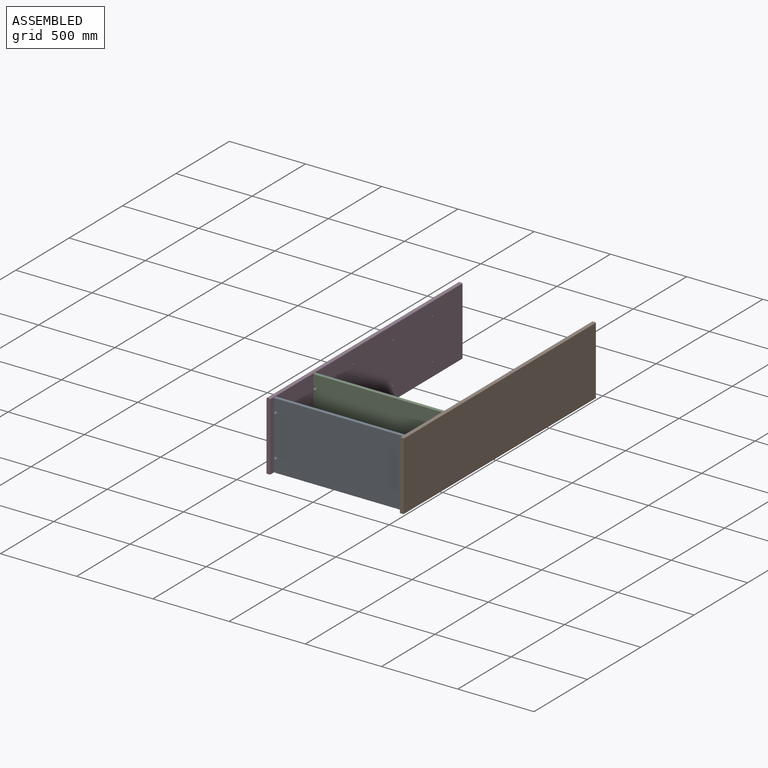
[diagram: assembled view]
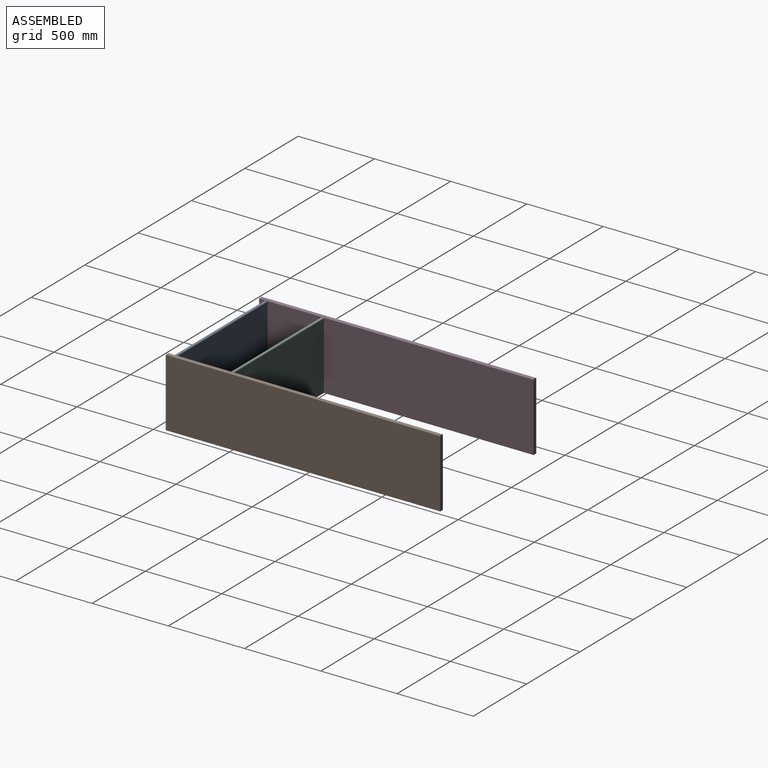
[diagram: assembled view, second angle]
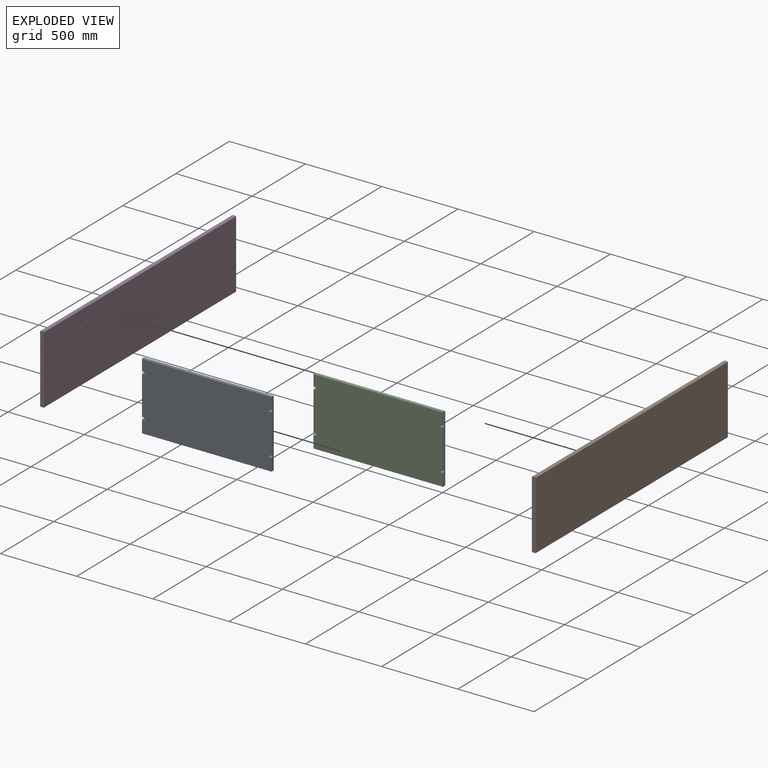
[diagram: exploded view]
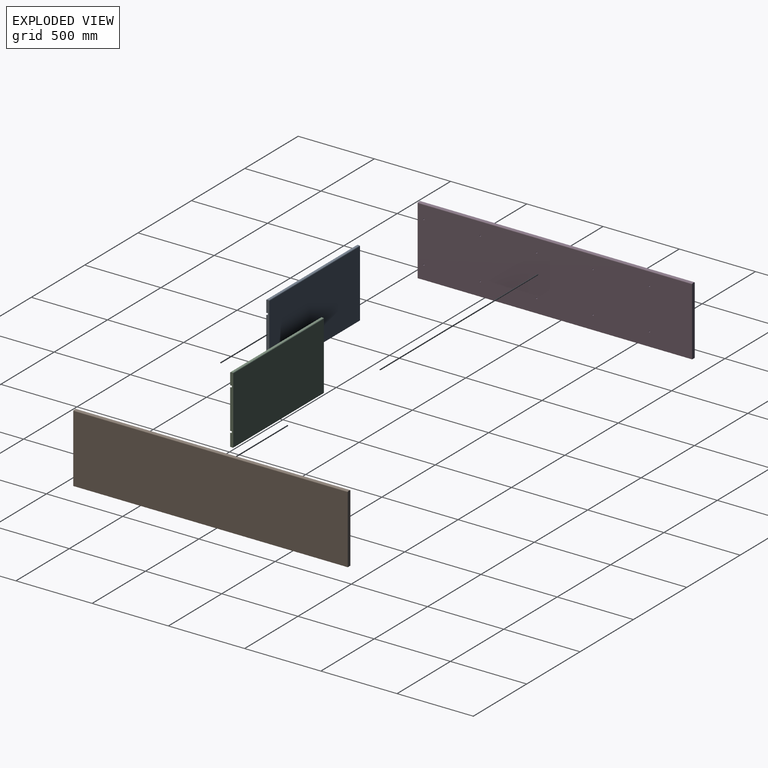
[diagram: exploded view, second angle]
ASSEMBLY  parts=4 mates=3
PART A: 28 faces, bbox 853.4x445x20 mm
  f0: plane 444x20mm, normal (1,0,0), area 8584mm2, adj f2,f3,f5,f10,f12,f14,f15,f16
  f1: plane 444x20mm, normal (-1,0,0), area 8584mm2, adj f2,f3,f5,f6,f8,f14,f15,f20
  f2: plane 850x439mm, normal (0,0,1), area 371924.4mm2, adj f0,f1,f7,f9,f11,f13,f15,f16
  f3: plane 850x10mm, normal (0,1,0), area 8500mm2, adj f0,f1,f14,f15
  f4: plane 848x18mm, normal (0,-1,0), area 15264mm2, adj f24,f25,f26,f27
  f5: plane 850x439mm, normal (0,0,-1), area 373150mm2, adj f0,f1,f14,f26
  f6: cone r=0mm half-angle=59deg, axis (0,0,1), area 357.5mm2, adj f1,f7,f20,f21
  f7: cylinder r=10mm len=20mm, axis (0,0,1), area 611mm2, adj f2,f6,f20,f21
  f8: cone r=0mm half-angle=59deg, axis (0,0,1), area 357.5mm2, adj f1,f9,f22,f23
  f9: cylinder r=10mm len=20mm, axis (0,0,1), area 611mm2, adj f2,f8,f22,f23
  f10: cone r=0mm half-angle=59deg, axis (0,0,1), area 357.5mm2, adj f0,f11,f18,f19
  f11: cylinder r=10mm len=20mm, axis (0,0,1), area 611mm2, adj f2,f10,f18,f19
  f12: cone r=0mm half-angle=59deg, axis (0,0,1), area 357.5mm2, adj f0,f13,f16,f17
  f13: cylinder r=10mm len=20mm, axis (0,0,1), area 611mm2, adj f2,f12,f16,f17
  f14: cylinder r=5mm len=850mm, axis (-1,0,0), area 6675.9mm2, adj f0,f1,f3,f5
  f15: cylinder r=5mm len=850mm, axis (1,0,0), area 6675.9mm2, adj f0,f1,f2,f3
  f16: plane 12x0.48mm, normal (0.29,0.96,0), area 5.9mm2, adj f0,f2,f12,f13
  f17: plane 12x0.48mm, normal (0.29,-0.96,0), area 5.9mm2, adj f0,f2,f12,f13
  f18: plane 12x0.48mm, normal (0.29,0.96,0), area 5.9mm2, adj f0,f2,f10,f11
  f19: plane 12x0.48mm, normal (0.29,-0.96,0), area 5.9mm2, adj f0,f2,f10,f11
  f20: plane 12x0.48mm, normal (-0.29,-0.96,0), area 5.9mm2, adj f1,f2,f6,f7
  f21: plane 12x0.48mm, normal (-0.29,0.96,0), area 5.9mm2, adj f1,f2,f6,f7
  f22: plane 12x0.48mm, normal (-0.29,0.96,0), area 5.9mm2, adj f1,f2,f8,f9
  f23: plane 12x0.48mm, normal (-0.29,-0.96,0), area 5.9mm2, adj f1,f2,f8,f9
  f24: plane 20x1mm, normal (-0.71,-0.71,0), area 26.9mm2, adj f1,f4,f25,f26
  f25: plane 850x1mm, normal (0,-0.71,0.71), area 1200.7mm2, adj f2,f4,f24,f27
  f26: plane 850x1mm, normal (0,-0.71,-0.71), area 1200.7mm2, adj f4,f5,f24,f27
  f27: plane 20x1mm, normal (0.71,-0.71,0), area 26.9mm2, adj f0,f4,f25,f26
PART B: 30 faces, bbox 450x25x1800 mm
  f0: plane 450x25mm, normal (0,0,-1), area 11238.3mm2, adj f1,f3,f4,f5,f26,f27,f28,f29
  f1: plane 1800x15mm, normal (1,0,0), area 27000mm2, adj f0,f2,f26,f27
  f2: plane 450x25mm, normal (0,0,1), area 11238.3mm2, adj f1,f3,f4,f5,f26,f27,f28,f29
  f3: plane 1800x23mm, normal (-1,0,0), area 41400mm2, adj f0,f2,f28,f29
  f4: plane 1800x444mm, normal (0,1,0), area 799200mm2, adj f0,f2,f27,f28
  f5: plane 1800x444mm, normal (0,-1,0), area 798697.3mm2, adj f0,f2,f7,f9,f11,f13,f15,f17
  f6: cone r=0mm half-angle=59deg, axis (0,-1,0), area 58.6mm2, adj f7
  f7: cylinder r=4mm len=12mm, axis (0,-1,0), area 301.6mm2, adj f5,f6
  f8: cone r=0mm half-angle=59deg, axis (0,-1,0), area 58.6mm2, adj f9
  f9: cylinder r=4mm len=12mm, axis (0,-1,0), area 301.6mm2, adj f5,f8
  f10: cone r=0mm half-angle=59deg, axis (0,-1,0), area 58.6mm2, adj f11
  f11: cylinder r=4mm len=12mm, axis (0,-1,0), area 301.6mm2, adj f5,f10
  f12: cone r=0mm half-angle=59deg, axis (0,-1,0), area 58.6mm2, adj f13
  f13: cylinder r=4mm len=12mm, axis (0,-1,0), area 301.6mm2, adj f5,f12
  f14: cone r=0mm half-angle=59deg, axis (0,-1,0), area 58.6mm2, adj f15
  f15: cylinder r=4mm len=12mm, axis (0,-1,0), area 301.6mm2, adj f5,f14
  f16: cone r=0mm half-angle=59deg, axis (0,-1,0), area 58.6mm2, adj f17
  f17: cylinder r=4mm len=12mm, axis (0,-1,0), area 301.6mm2, adj f5,f16
  f18: cone r=0mm half-angle=59deg, axis (0,-1,0), area 58.6mm2, adj f19
  f19: cylinder r=4mm len=12mm, axis (0,-1,0), area 301.6mm2, adj f5,f18
  f20: cone r=0mm half-angle=59deg, axis (0,-1,0), area 58.6mm2, adj f21
  f21: cylinder r=4mm len=12mm, axis (0,-1,0), area 301.6mm2, adj f5,f20
  f22: cone r=0mm half-angle=59deg, axis (0,-1,0), area 58.6mm2, adj f23
  f23: cylinder r=4mm len=12mm, axis (0,-1,0), area 301.6mm2, adj f5,f22
  f24: cone r=0mm half-angle=59deg, axis (0,-1,0), area 58.6mm2, adj f25
  f25: cylinder r=4mm len=12mm, axis (0,-1,0), area 301.6mm2, adj f5,f24
  f26: cylinder r=5mm len=1800mm, axis (0,0,1), area 14137.2mm2, adj f0,f1,f2,f5
  f27: cylinder r=5mm len=1800mm, axis (0,0,-1), area 14137.2mm2, adj f0,f1,f2,f4
  f28: plane 1800x1mm, normal (-0.71,0.71,0), area 2545.6mm2, adj f0,f2,f3,f4
  f29: plane 1800x1mm, normal (-0.71,-0.71,0), area 2545.6mm2, adj f0,f2,f3,f5
PART C: same geometry as A
PART D: 30 faces, bbox 450x25x1800 mm
  f0: plane 450x25mm, normal (0,0,-1), area 11238.3mm2, adj f1,f3,f4,f5,f26,f27,f28,f29
  f1: plane 1800x23mm, normal (1,0,0), area 41400mm2, adj f0,f2,f28,f29
  f2: plane 450x25mm, normal (0,0,1), area 11238.3mm2, adj f1,f3,f4,f5,f26,f27,f28,f29
  f3: plane 1800x15mm, normal (-1,0,0), area 27000mm2, adj f0,f2,f26,f27
  f4: plane 1800x444mm, normal (0,1,0), area 799200mm2, adj f0,f2,f27,f29
  f5: plane 1800x444mm, normal (0,-1,0), area 798697.3mm2, adj f0,f2,f7,f9,f11,f13,f15,f17
  f6: cone r=0mm half-angle=59deg, axis (0,-1,0), area 58.6mm2, adj f7
  f7: cylinder r=4mm len=12mm, axis (0,-1,0), area 301.6mm2, adj f5,f6
  f8: cone r=0mm half-angle=59deg, axis (0,-1,0), area 58.6mm2, adj f9
  f9: cylinder r=4mm len=12mm, axis (0,-1,0), area 301.6mm2, adj f5,f8
  f10: cone r=0mm half-angle=59deg, axis (0,-1,0), area 58.6mm2, adj f11
  f11: cylinder r=4mm len=12mm, axis (0,-1,0), area 301.6mm2, adj f5,f10
  f12: cone r=0mm half-angle=59deg, axis (0,-1,0), area 58.6mm2, adj f13
  f13: cylinder r=4mm len=12mm, axis (0,-1,0), area 301.6mm2, adj f5,f12
  f14: cone r=0mm half-angle=59deg, axis (0,-1,0), area 58.6mm2, adj f15
  f15: cylinder r=4mm len=12mm, axis (0,-1,0), area 301.6mm2, adj f5,f14
  f16: cone r=0mm half-angle=59deg, axis (0,-1,0), area 58.6mm2, adj f17
  f17: cylinder r=4mm len=12mm, axis (0,-1,0), area 301.6mm2, adj f5,f16
  f18: cone r=0mm half-angle=59deg, axis (0,-1,0), area 58.6mm2, adj f19
  f19: cylinder r=4mm len=12mm, axis (0,-1,0), area 301.6mm2, adj f5,f18
  f20: cone r=0mm half-angle=59deg, axis (0,-1,0), area 58.6mm2, adj f21
  f21: cylinder r=4mm len=12mm, axis (0,-1,0), area 301.6mm2, adj f5,f20
  f22: cone r=0mm half-angle=59deg, axis (0,-1,0), area 58.6mm2, adj f23
  f23: cylinder r=4mm len=12mm, axis (0,-1,0), area 301.6mm2, adj f5,f22
  f24: cone r=0mm half-angle=59deg, axis (0,-1,0), area 58.6mm2, adj f25
  f25: cylinder r=4mm len=12mm, axis (0,-1,0), area 301.6mm2, adj f5,f24
  f26: cylinder r=5mm len=1800mm, axis (0,0,-1), area 14137.2mm2, adj f0,f2,f3,f5
  f27: cylinder r=5mm len=1800mm, axis (0,0,1), area 14137.2mm2, adj f0,f2,f3,f4
  f28: plane 1800x1mm, normal (0.71,-0.71,0), area 2545.6mm2, adj f0,f1,f2,f5
  f29: plane 1800x1mm, normal (0.71,0.71,0), area 2545.6mm2, adj f0,f1,f2,f4
PLACE A rot(axis=(1,0,0),90deg) t=(-425,-855.08,-0.5)mm
PLACE B rot(axis=(-0.58,-0.58,-0.58),120deg) t=(0,-0.08,2)mm
PLACE C rot(axis=(1,0,0),90deg) t=(-425,-485.08,-0.5)mm
PLACE D rot(axis=(-0.58,0.58,0.58),120deg) t=(-850,-0.08,2)mm
MATE fastened B.f16 <-> A.f0  axis (-1,0,0) through (0,-860.08,137)mm
MATE fastened B.f12 <-> C.f0  axis (-1,0,0) through (0,-490.08,137)mm
MATE fastened D.f6 <-> A.f1  axis (1,0,0) through (-850,-860.08,137)mm
